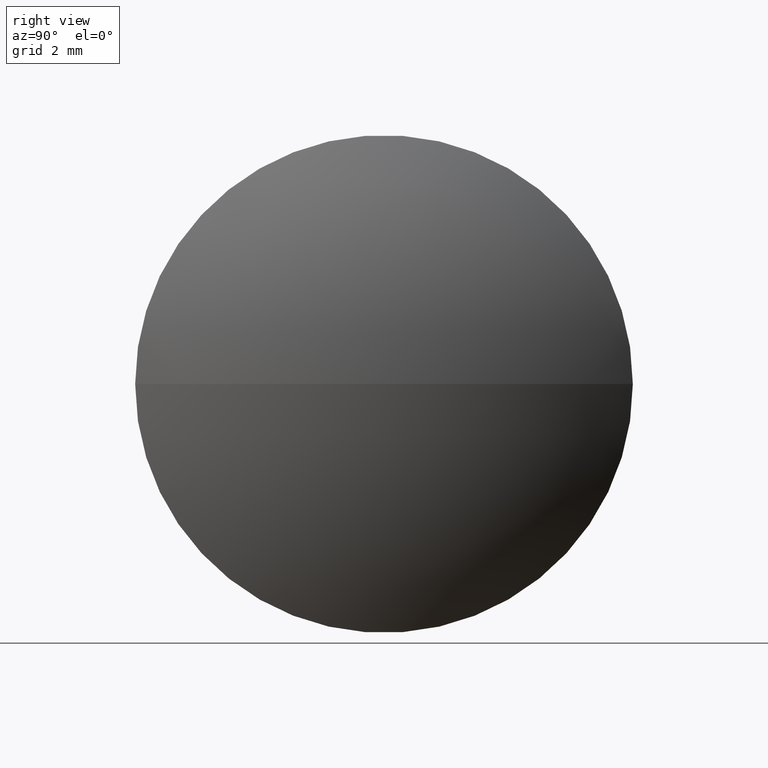
[diagram: clean part render]
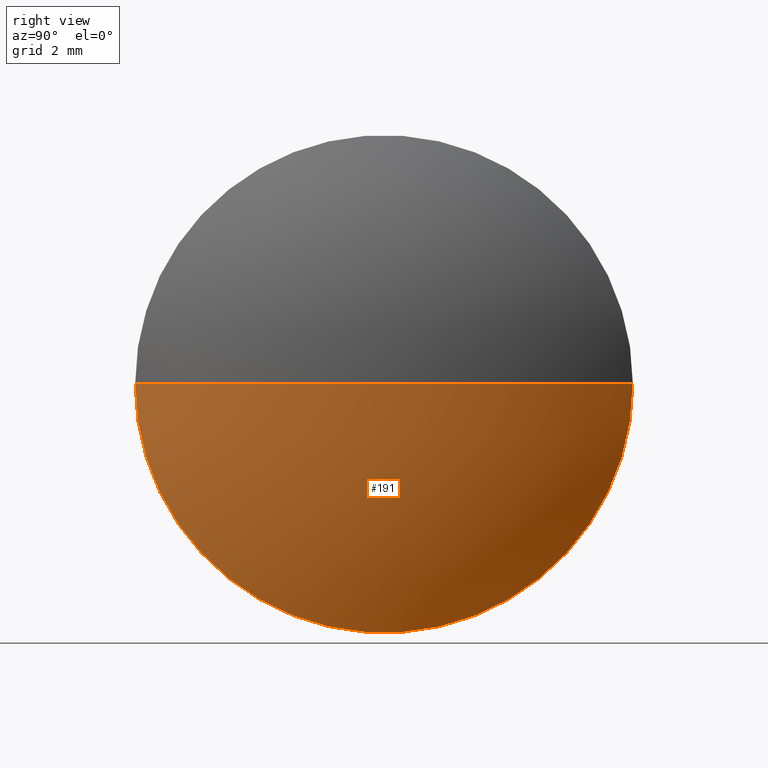
[diagram: same view with one face highlighted and labeled with its STEP entity id]
A machine part, right view. The second image highlights one B-rep face of the part: STEP entity #191.
In plain terms, the highlighted spherical surface has radius 15.3182 mm.
Its self-contained STEP definition (entity closure, byte-faithful):
#7 = CARTESIAN_POINT ( 'NONE',  ( 55.46185434624406700, 38.62432316421085700, 9.797174393178758600E-016 ) ) ;
#27 = VERTEX_POINT ( 'NONE', #39 ) ;
#29 = DIRECTION ( 'NONE',  ( -1.000000000000000000, -3.453227301823334800E-015, -0.0000000000000000000 ) ) ;
#37 = DIRECTION ( 'NONE',  ( 0.0000000000000000000, 0.0000000000000000000, -1.000000000000000000 ) ) ;
#39 = CARTESIAN_POINT ( 'NONE',  ( 55.46185434624412400, 22.62432316421092800, 0.0000000000000000000 ) ) ;
#59 = AXIS2_PLACEMENT_3D ( 'NONE', #304, #29, #129 ) ;
#62 = SPHERICAL_SURFACE ( 'NONE', #223, 15.31822046429724300 ) ;
#87 = DIRECTION ( 'NONE',  ( 3.623864231530011200E-015, -1.000000000000000000, 0.0000000000000000000 ) ) ;
#95 = VERTEX_POINT ( 'NONE', #7 ) ;
#103 = DIRECTION ( 'NONE',  ( 4.228983761906197800E-031, -1.224646799147353200E-016, 1.000000000000000000 ) ) ;
#109 = EDGE_CURVE ( 'NONE', #285, #27, #242, .T. ) ;
#112 = DIRECTION ( 'NONE',  ( -0.0000000000000000000, 0.0000000000000000000, 1.000000000000000000 ) ) ;
#118 = ORIENTED_EDGE ( 'NONE', *, *, #182, .F. ) ;
#129 = DIRECTION ( 'NONE',  ( 3.469446951953626000E-015, -1.000000000000000000, 0.0000000000000000000 ) ) ;
#135 = ORIENTED_EDGE ( 'NONE', *, *, #200, .F. ) ;
#136 = CIRCLE ( 'NONE', #59, 7.999999999999972500 ) ;
#139 = ORIENTED_EDGE ( 'NONE', *, *, #109, .T. ) ;
#140 = DIRECTION ( 'NONE',  ( -1.000000000000000000, 0.0000000000000000000, 0.0000000000000000000 ) ) ;
#175 = AXIS2_PLACEMENT_3D ( 'NONE', #246, #103, #291 ) ;
#179 = CARTESIAN_POINT ( 'NONE',  ( 57.71684863195836400, 30.62432316421091000, 0.0000000000000000000 ) ) ;
#182 = EDGE_CURVE ( 'NONE', #285, #95, #245, .T. ) ;
#191 = ADVANCED_FACE ( 'NONE', ( #300 ), #62, .T. ) ;
#200 = EDGE_CURVE ( 'NONE', #95, #27, #136, .T. ) ;
#223 = AXIS2_PLACEMENT_3D ( 'NONE', #236, #112, #87 ) ;
#236 = CARTESIAN_POINT ( 'NONE',  ( 42.39862816766111600, 30.62432316421085700, 0.0000000000000000000 ) ) ;
#242 = CIRCLE ( 'NONE', #267, 15.31822046429724300 ) ;
#245 = CIRCLE ( 'NONE', #175, 15.31822046429724300 ) ;
#246 = CARTESIAN_POINT ( 'NONE',  ( 42.39862816766111600, 30.62432316421085700, 0.0000000000000000000 ) ) ;
#263 = EDGE_LOOP ( 'NONE', ( #118, #139, #135 ) ) ;
#267 = AXIS2_PLACEMENT_3D ( 'NONE', #277, #37, #140 ) ;
#277 = CARTESIAN_POINT ( 'NONE',  ( 42.39862816766111600, 30.62432316421085700, 0.0000000000000000000 ) ) ;
#285 = VERTEX_POINT ( 'NONE', #179 ) ;
#291 = DIRECTION ( 'NONE',  ( 0.0000000000000000000, -1.000000000000000000, -1.224646799147353200E-016 ) ) ;
#300 = FACE_OUTER_BOUND ( 'NONE', #263, .T. ) ;
#304 = CARTESIAN_POINT ( 'NONE',  ( 55.46185434624409500, 30.62432316421087500, 0.0000000000000000000 ) ) ;